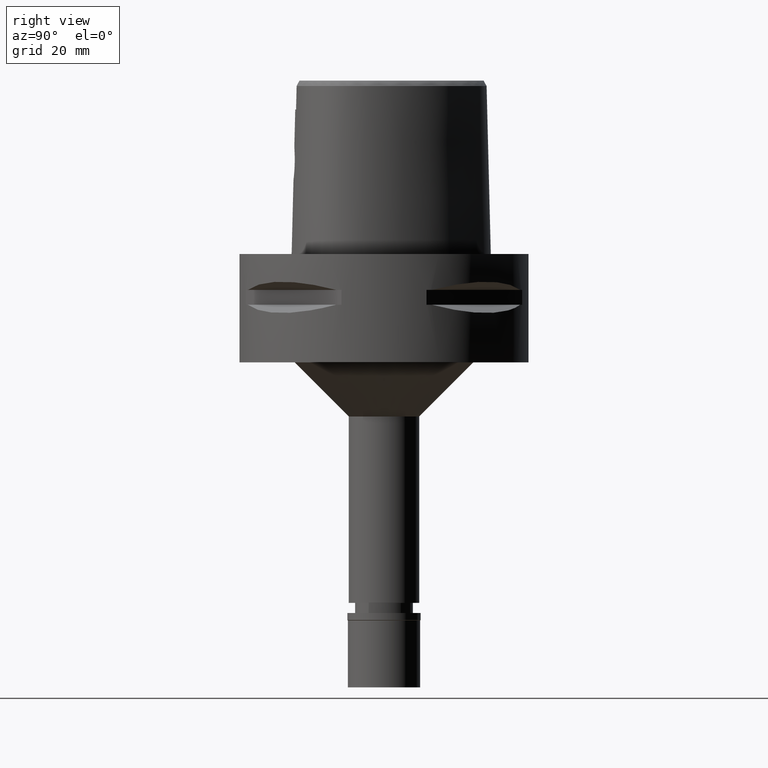
[diagram: clean part render]
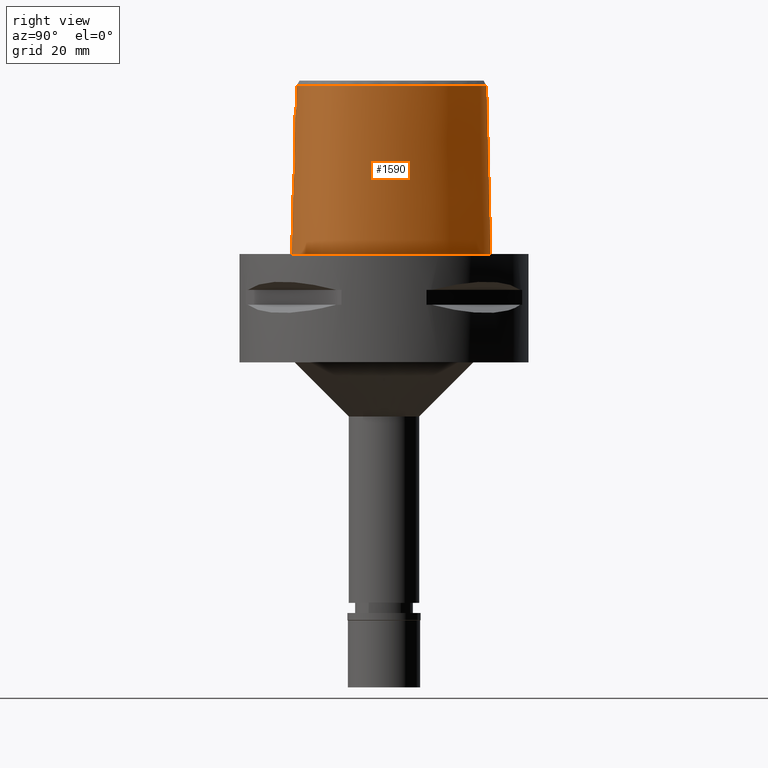
[diagram: same view with one face highlighted and labeled with its STEP entity id]
A machine part, right view. The second image highlights one B-rep face of the part: STEP entity #1590.
In plain terms, the highlighted face is a freeform B-spline surface patch.
Its self-contained STEP definition (entity closure, byte-faithful):
#25 = CARTESIAN_POINT ( 'NONE',  ( 4.255303340876159801, -24.72011691775877296, 26.61166571686794313 ) ) ;
#71 = EDGE_CURVE ( 'NONE', #4974, #72, #561, .T. ) ;
#72 = VERTEX_POINT ( 'NONE', #533 ) ;
#74 = CARTESIAN_POINT ( 'NONE',  ( 26.66520819006000309, -5.367805594961000182, 47.45115810789000221 ) ) ;
#97 = CARTESIAN_POINT ( 'NONE',  ( 25.95531648454999996, -11.08496000101999890, 47.45115810789000221 ) ) ;
#100 = CARTESIAN_POINT ( 'NONE',  ( 2.284825071854698741, -24.79755434855704266, 28.93755567618812208 ) ) ;
#117 = CARTESIAN_POINT ( 'NONE',  ( 24.79336082232000038, -16.13554023026999928, -0.9304148648605999883 ) ) ;
#128 = CARTESIAN_POINT ( 'NONE',  ( 24.69258566271064126, -14.08975149522348325, 46.52069831738066341 ) ) ;
#143 = CARTESIAN_POINT ( 'NONE',  ( 24.10679938013999646, 6.379205354108999693, 47.45115810789000221 ) ) ;
#151 = B_SPLINE_CURVE_WITH_KNOTS ( 'NONE', 3,
 ( #5047, #4221, #326, #1563, #4294, #1508, #3495, #3091, #4656, #3418, #2660, #3115, #1108, #2730, #4708, #275, #5022, #713, #5074, #4681, #1135, #2343, #3910, #639, #3521, #1954, #2242, #3808, #4996, #1452, #3039, #1870, #1062, #1485, #3067, #4630, #3172, #766, #1621, #2005, #1670, #4817, #3991, #3576, #4352, #3939, #2756, #407, #4838, #4321, #3247, #2371, #3198, #25, #480, #1219, #841, #2078, #3651, #4737, #2858, #2423, #1269, #3269, #4378, #380, #868, #2473, #4764, #2056, #430, #4795, #1245, #1981, #2029, #1593, #4423, #4038, #100, #3966, #3552, #457, #817, #2447, #3604, #1192, #4398 ),
 .UNSPECIFIED., .F., .F.,
 ( 4, 2, 2, 1, 1, 1, 1, 2, 2, 2, 2, 2, 1, 1, 2, 2, 2, 2, 2, 2, 1, 2, 2, 2, 2, 1, 2, 2, 2, 2, 1, 1, 1, 2, 2, 2, 2, 2, 1, 1, 2, 2, 2, 1, 2, 2, 2, 1, 2, 2, 4 ),
 ( 0.0000000000000000000, 0.06250000000003209932, 0.09375000000004818368, 0.1093750000000561773, 0.1171875000000603267, 0.1210937500000623945, 0.1230468750000632966, 0.1240234375000636158, 0.1250000000000639211, 0.1875000000000706935, 0.2187500000000739131, 0.2343750000000753286, 0.2421875000000759948, 0.2460937500000763556, 0.2480468750000762723, 0.2500000000000761613, 0.2812500000000740519, 0.2968750000000729972, 0.3125000000000718869, 0.3437500000000697220, 0.3593750000000690004, 0.3671875000000682787, 0.3750000000000675571, 0.4375000000000607847, 0.4687500000000576761, 0.4843750000000565104, 0.4921875000000559552, 0.5000000000000552891, 0.5625000000000507372, 0.5937500000000485167, 0.6093750000000474065, 0.6171875000000468514, 0.6210937500000466294, 0.6230468750000465183, 0.6250000000000464073, 0.6875000000000431877, 0.7187500000000413003, 0.7343750000000403011, 0.7421875000000396350, 0.7460937500000393019, 0.7480468750000389688, 0.7500000000000386358, 0.7812500000000346390, 0.7968750000000325295, 0.8046875000000315303, 0.8125000000000306422, 0.8437500000000253131, 0.8593750000000225375, 0.8671875000000213163, 0.8750000000000199840, 1.000000000000000000 ),
 .UNSPECIFIED. ) ;
#165 = CARTESIAN_POINT ( 'NONE',  ( 26.37046815431000013, -13.40391020210000228, -0.9304148648605999883 ) ) ;
#168 = CARTESIAN_POINT ( 'NONE',  ( 1.049694954398138425, 29.57499994949292699, 2.020350682975860512E-06 ) ) ;
#240 = LINE ( 'NONE', #3004, #3667 ) ;
#275 = CARTESIAN_POINT ( 'NONE',  ( 2.568983978598533113, -24.97528315391451414, 21.24168007029539496 ) ) ;
#287 = CARTESIAN_POINT ( 'NONE',  ( 8.894849643728001354, 26.12169650510000096, 31.32396711697000313 ) ) ;
#326 = CARTESIAN_POINT ( 'NONE',  ( 0.5741109003799529376, -25.06046598330699737, 20.47661985235028581 ) ) ;
#380 = CARTESIAN_POINT ( 'NONE',  ( 3.329382130122031658, -24.75674668230306352, 28.10179055163081685 ) ) ;
#406 = ORIENTED_EDGE ( 'NONE', *, *, #2883, .T. ) ;
#407 = CARTESIAN_POINT ( 'NONE',  ( 4.550159243768822748, -24.72595648767390131, 25.28426205013431627 ) ) ;
#430 = CARTESIAN_POINT ( 'NONE',  ( 3.115833847004891854, -24.76582665838796871, 28.31908668410576269 ) ) ;
#450 = CARTESIAN_POINT ( 'NONE',  ( 22.57751523357000067, -16.93548344190999799, 47.45115810789000221 ) ) ;
#457 = CARTESIAN_POINT ( 'NONE',  ( 1.883305297023832203, -24.80958828430668461, 29.14211520706646041 ) ) ;
#476 = CARTESIAN_POINT ( 'NONE',  ( 11.64093419862999923, -23.76831828479999942, 15.19677612605999961 ) ) ;
#480 = CARTESIAN_POINT ( 'NONE',  ( 4.230858595537661415, -24.72073100376797328, 26.67421065539050318 ) ) ;
#497 = CARTESIAN_POINT ( 'NONE',  ( 15.30623779952999897, -22.98697011092999887, -0.9304148648605999883 ) ) ;
#525 = CARTESIAN_POINT ( 'NONE',  ( 26.00056126445000260, -13.24168024067999916, 15.19677612605999961 ) ) ;
#533 = CARTESIAN_POINT ( 'NONE',  ( -1.503646693047000230E-11, -25.57499999999999929, 7.701247047482998387E-14 ) ) ;
#537 = CARTESIAN_POINT ( 'NONE',  ( 3.083107003972266558, -24.50056602138460349, 40.00000010061342692 ) ) ;
#552 = CARTESIAN_POINT ( 'NONE',  ( 22.86810858523000078, -17.21714013668999854, 31.32396711697000313 ) ) ;
#557 = CARTESIAN_POINT ( 'NONE',  ( 22.33885461375145454, 12.89734372464069168, 2.020350682975860512E-06 ) ) ;
#558 = CARTESIAN_POINT ( 'NONE',  ( 4.472216720976999405, -24.20009030094000124, 46.52069014668999358 ) ) ;
#561 = LINE ( 'NONE', #897, #1191 ) ;
#564 = CARTESIAN_POINT ( 'NONE',  ( 26.04423705949246681, -10.88022456237710678, 46.52069972612039095 ) ) ;
#574 = CARTESIAN_POINT ( 'NONE',  ( 4.516620373932790145, -24.24973711153631939, 44.34712678184333612 ) ) ;
#606 = CARTESIAN_POINT ( 'NONE',  ( -0.8826520932963000110, 29.16640526415000068, 15.19677612605999961 ) ) ;
#608 = CARTESIAN_POINT ( 'NONE',  ( -4.859330059104824178E-09, -24.74922215084501431, 33.03333351495535197 ) ) ;
#632 = CARTESIAN_POINT ( 'NONE',  ( 5.957940551854999711, 27.62557816347999662, 31.32396711697000313 ) ) ;
#639 = CARTESIAN_POINT ( 'NONE',  ( 3.196341748950096928, -24.92467674393279964, 21.76178677583786936 ) ) ;
#655 = CARTESIAN_POINT ( 'NONE',  ( -0.5711750854157000568, 28.78275017890000242, 31.32396711697000313 ) ) ;
#679 = CARTESIAN_POINT ( 'NONE',  ( 6.271543174286001054, 28.37237221420999944, -0.9304148648605999883 ) ) ;
#689 = CARTESIAN_POINT ( 'NONE',  ( 3.645689543555000014E-11, 29.57499999998999840, 7.064719180030999212E-14 ) ) ;
#712 = VERTEX_POINT ( 'NONE', #689 ) ;
#713 = CARTESIAN_POINT ( 'NONE',  ( 2.890648186358896865, -24.95092863274546247, 21.48525694161316224 ) ) ;
#726 = CARTESIAN_POINT ( 'NONE',  ( 1.351075727145000046E-14, -24.83629963747999980, 29.55000000000000071 ) ) ;
#733 = EDGE_CURVE ( 'NONE', #4974, #2563, #151, .T. ) ;
#748 = EDGE_CURVE ( 'NONE', #72, #712, #3134, .T. ) ;
#766 = CARTESIAN_POINT ( 'NONE',  ( 4.186622009783886433, -24.81141158316093254, 23.21777758281611526 ) ) ;
#787 = CARTESIAN_POINT ( 'NONE',  ( -0.5642169905602000268, -25.19264548519999991, 15.19677612605999961 ) ) ;
#796 = CARTESIAN_POINT ( 'NONE',  ( -1.503646693047000230E-11, -25.57499999999999929, 7.701247047482998387E-14 ) ) ;
#815 = CARTESIAN_POINT ( 'NONE',  ( 4.472216720976999405, -24.20009030094000124, 46.52069014668999358 ) ) ;
#817 = CARTESIAN_POINT ( 'NONE',  ( 1.813541865611360882, -24.81148519056482726, 29.17313109452413045 ) ) ;
#836 = CARTESIAN_POINT ( 'NONE',  ( 14.86558269258999943, -21.85772746754999929, 47.45115810789000221 ) ) ;
#841 = CARTESIAN_POINT ( 'NONE',  ( 4.212885333431600543, -24.72121330192673838, 26.71877560768000492 ) ) ;
#862 = CARTESIAN_POINT ( 'NONE',  ( 15.01246772824000075, -22.23414168200999796, 31.32396711697000313 ) ) ;
#868 = CARTESIAN_POINT ( 'NONE',  ( 3.275992991611895278, -24.75902016830565344, 28.15772619068094684 ) ) ;
#880 = CARTESIAN_POINT ( 'NONE',  ( 26.30769162470403089, -1.593520748817947696, 46.52070310709583367 ) ) ;
#890 = CARTESIAN_POINT ( 'NONE',  ( 27.47379235717000157, -5.347524340868999637, 15.19677612605999961 ) ) ;
#894 = CARTESIAN_POINT ( 'NONE',  ( 26.34912732586222361, -13.39455076092531094, 2.020350682975860512E-06 ) ) ;
#897 = CARTESIAN_POINT ( 'NONE',  ( -1.869387194591000113E-12, -25.06378435148999984, 20.44999999999999929 ) ) ;
#916 = CARTESIAN_POINT ( 'NONE',  ( 26.76156673356999960, -1.884109369419999958, 31.32396711697000313 ) ) ;
#940 = CARTESIAN_POINT ( 'NONE',  ( 26.90338645297000042, -8.653104814034998427, 31.32396711697000313 ) ) ;
#952 = CARTESIAN_POINT ( 'NONE',  ( 10.99875819582718783, 24.38035098655623045, 46.52071268652620972 ) ) ;
#965 = CARTESIAN_POINT ( 'NONE',  ( -1.451045074373000022E-08, -24.57504746727000011, 40.00000005214000254 ) ) ;
#968 = CARTESIAN_POINT ( 'NONE',  ( 3.149084863600866147, 29.34015620035621552, 2.020350682975860512E-06 ) ) ;
#978 = ORIENTED_EDGE ( 'NONE', *, *, #748, .T. ) ;
#991 = CARTESIAN_POINT ( 'NONE',  ( 3.067023364384000139, 28.96669959303000041, 15.19677612605999961 ) ) ;
#1050 = CARTESIAN_POINT ( 'NONE',  ( 12.96695399538999993, 23.75598697896000289, 15.19677612605999961 ) ) ;
#1062 = CARTESIAN_POINT ( 'NONE',  ( 3.937353243848182416, -24.84519667286565081, 22.71482954510167218 ) ) ;
#1078 = VERTEX_POINT ( 'NONE', #558 ) ;
#1108 = CARTESIAN_POINT ( 'NONE',  ( 1.732112786592430842, -25.02412118468006241, 20.79259001707740140 ) ) ;
#1135 = CARTESIAN_POINT ( 'NONE',  ( 3.100243586364280102, -24.93331626314397198, 21.66917441973963321 ) ) ;
#1156 = CARTESIAN_POINT ( 'NONE',  ( 2.373865152720000093, -25.21827227128000004, 15.19677612605999961 ) ) ;
#1191 = VECTOR ( 'NONE', #4529, 1000.000000000000000 ) ;
#1192 = CARTESIAN_POINT ( 'NONE',  ( 0.5545157691441454650, -24.83629963748000691, 29.55000000000000782 ) ) ;
#1219 = CARTESIAN_POINT ( 'NONE',  ( 4.220110851308596978, -24.72101730040711942, 26.70095761995009553 ) ) ;
#1245 = CARTESIAN_POINT ( 'NONE',  ( 2.832428424601074912, -24.77719445135568321, 28.56165880794259593 ) ) ;
#1265 = CARTESIAN_POINT ( 'NONE',  ( 27.16099283278999721, -1.823107515857000038, 15.19677612605999961 ) ) ;
#1269 = CARTESIAN_POINT ( 'NONE',  ( 3.512978482362885124, -24.74890643940148394, 27.89278862329918596 ) ) ;
#1285 = CARTESIAN_POINT ( 'NONE',  ( 25.26074748473000042, -12.91722031783000091, 47.45115810789000221 ) ) ;
#1299 = CARTESIAN_POINT ( 'NONE',  ( -1.451045074373000022E-08, -24.57504746727000011, 40.00000005214000254 ) ) ;
#1311 = CARTESIAN_POINT ( 'NONE',  ( 27.06950027361999744, -5.357664967915000354, 31.32396711697000313 ) ) ;
#1314 = CARTESIAN_POINT ( 'NONE',  ( 17.75297947250131614, 19.52218746774529734, 2.020350682975860512E-06 ) ) ;
#1322 = CARTESIAN_POINT ( 'NONE',  ( 24.48700992950455202, 6.834036305495234664, 46.52070592457526033 ) ) ;
#1335 = CARTESIAN_POINT ( 'NONE',  ( 6.695047937836999807, -25.26858195585000288, -0.9304148648605999883 ) ) ;
#1363 = CARTESIAN_POINT ( 'NONE',  ( 27.87808444071999858, -5.337383713823999898, -0.9304148648605999883 ) ) ;
#1400 = CARTESIAN_POINT ( 'NONE',  ( 4.472216720976999405, -24.20009030094000124, 46.52069014668999358 ) ) ;
#1418 = CARTESIAN_POINT ( 'NONE',  ( 0.6828676300167999536, 28.41974757618999803, 47.45115810789000221 ) ) ;
#1441 = CARTESIAN_POINT ( 'NONE',  ( 21.30723540749999856, 12.30173079563000016, 47.45115810789000221 ) ) ;
#1452 = CARTESIAN_POINT ( 'NONE',  ( 3.695416430653968298, -24.87420445000563873, 22.34444809527642306 ) ) ;
#1474 = CARTESIAN_POINT ( 'NONE',  ( 12.43420484750999933, 23.14497592412000060, 47.45115810789000221 ) ) ;
#1484 = ORIENTED_EDGE ( 'NONE', *, *, #1987, .F. ) ;
#1485 = CARTESIAN_POINT ( 'NONE',  ( 4.043275511959487645, -24.83139551622599939, 22.91194186429490642 ) ) ;
#1508 = CARTESIAN_POINT ( 'NONE',  ( 1.374979210369259075, -25.03889659011747426, 20.66206490747639535 ) ) ;
#1527 = CARTESIAN_POINT ( 'NONE',  ( -0.8391799784567999243, -24.78463116380999764, 31.32396711697000313 ) ) ;
#1555 = CARTESIAN_POINT ( 'NONE',  ( -0.5548491662155999871, -24.38637808051000277, 47.45115810789000221 ) ) ;
#1563 = CARTESIAN_POINT ( 'NONE',  ( 1.011135947206215357, -25.05051087875797577, 20.56129276502841918 ) ) ;
#1590 = ADVANCED_FACE ( 'NONE', ( #1945 ), #4994, .T. ) ;
#1593 = CARTESIAN_POINT ( 'NONE',  ( 2.592678685477895595, -24.78641481269933777, 28.73923899945411975 ) ) ;
#1612 = CARTESIAN_POINT ( 'NONE',  ( -0.8532294279300000062, -25.59082454062000167, -0.9304148648605999883 ) ) ;
#1621 = CARTESIAN_POINT ( 'NONE',  ( 4.325577296999666643, -24.79069917426005532, 23.55238152010286257 ) ) ;
#1646 = VERTEX_POINT ( 'NONE', #965 ) ;
#1648 = CARTESIAN_POINT ( 'NONE',  ( 15.29776364445727665, -22.96525385909394146, 2.020350682975860512E-06 ) ) ;
#1664 = CARTESIAN_POINT ( 'NONE',  ( 22.00846679324000021, 12.70659188880000023, 15.19677612605999961 ) ) ;
#1670 = CARTESIAN_POINT ( 'NONE',  ( 4.496850936021979273, -24.75618253903773791, 24.29074513878774511 ) ) ;
#1676 = CARTESIAN_POINT ( 'NONE',  ( 26.66096789088750540, -6.450661550929090104, 46.52070141660812652 ) ) ;
#1685 = CARTESIAN_POINT ( 'NONE',  ( 23.44929528854000367, -17.78045352626000053, -0.9304148648605999883 ) ) ;
#1698 = CARTESIAN_POINT ( 'NONE',  ( 11.70978320535028416, -23.05272019185246890, 46.52069240067365286 ) ) ;
#1709 = CARTESIAN_POINT ( 'NONE',  ( 6.528779289221000148, -24.06669525166000057, 47.45115810789000221 ) ) ;
#1711 = ORIENTED_EDGE ( 'NONE', *, *, #71, .T. ) ;
#1738 = CARTESIAN_POINT ( 'NONE',  ( 26.34453501942000031, -11.19579288669999961, 31.32396711697000313 ) ) ;
#1741 = CARTESIAN_POINT ( 'NONE',  ( 24.77458489416542520, -16.12173825127648286, 2.020350682975860512E-06 ) ) ;
#1761 = CARTESIAN_POINT ( 'NONE',  ( 26.79474626713000163, 1.906447389826000149, -0.9304148648605999883 ) ) ;
#1765 = CARTESIAN_POINT ( 'NONE',  ( 26.77222809381433777, 1.900468737017501741, 2.020350682975860512E-06 ) ) ;
#1772 = CARTESIAN_POINT ( 'NONE',  ( 23.53784508589368940, -15.81022840325322143, 46.52069747213678141 ) ) ;
#1802 = VERTEX_POINT ( 'NONE', #4725 ) ;
#1870 = CARTESIAN_POINT ( 'NONE',  ( 3.861082105047251023, -24.85463631592573464, 22.58840412900304173 ) ) ;
#1881 = CARTESIAN_POINT ( 'NONE',  ( -1.869387194591000113E-12, -25.06378435148999984, 20.44999999999999929 ) ) ;
#1945 = FACE_OUTER_BOUND ( 'NONE', #4707, .T. ) ;
#1954 = CARTESIAN_POINT ( 'NONE',  ( 3.317903692992100861, -24.91347842919924815, 21.88291014845671967 ) ) ;
#1981 = CARTESIAN_POINT ( 'NONE',  ( 2.744259390201259752, -24.78063453097679059, 28.63060330404773524 ) ) ;
#1987 = EDGE_CURVE ( 'NONE', #3246, #712, #240, .T. ) ;
#2005 = CARTESIAN_POINT ( 'NONE',  ( 4.412773899541610589, -24.77516587915418711, 23.85162301166201715 ) ) ;
#2029 = CARTESIAN_POINT ( 'NONE',  ( 2.653628212344012471, -24.78409939537355555, 28.69623435023023106 ) ) ;
#2049 = CARTESIAN_POINT ( 'NONE',  ( 27.12297208917999924, -11.41745865807000015, -0.9304148648605999883 ) ) ;
#2056 = CARTESIAN_POINT ( 'NONE',  ( 3.227783996387031173, -24.76107025147647178, 28.20686722737175955 ) ) ;
#2073 = CARTESIAN_POINT ( 'NONE',  ( 24.46791210766999924, -15.89630644720000241, 15.19677612605999961 ) ) ;
#2078 = CARTESIAN_POINT ( 'NONE',  ( 4.208386412724069103, -24.72133790640166850, 26.72975093107614342 ) ) ;
#2086 = CARTESIAN_POINT ( 'NONE',  ( 17.84219066874068460, -20.48406917474394007, 46.52069465465723397 ) ) ;
#2096 = CARTESIAN_POINT ( 'NONE',  ( 23.81701467837000052, -15.41783888106999889, 47.45115810789000221 ) ) ;
#2107 = CARTESIAN_POINT ( 'NONE',  ( -1.276312217242000094E-11, 28.41206021534999593, 46.52071719450999154 ) ) ;
#2121 = CARTESIAN_POINT ( 'NONE',  ( 25.65830881006000297, -14.81383149846000080, -0.9304148648605999883 ) ) ;
#2153 = CARTESIAN_POINT ( 'NONE',  ( 6.639625054965000217, -24.86795305445999915, 15.19677612605999961 ) ) ;
#2166 = CARTESIAN_POINT ( 'NONE',  ( 24.33934953590062378, -14.68006085516705461, 46.52069803563267669 ) ) ;
#2205 = CARTESIAN_POINT ( 'NONE',  ( -0.5537150777366000032, 28.37988123787999939, 47.45115810789000221 ) ) ;
#2242 = CARTESIAN_POINT ( 'NONE',  ( 3.418326490945261309, -24.90370471633881877, 21.99337763265282319 ) ) ;
#2257 = CARTESIAN_POINT ( 'NONE',  ( 5.801139240639000327, 27.25218113812000098, 47.45115810789000221 ) ) ;
#2281 = CARTESIAN_POINT ( 'NONE',  ( -0.8299363096446000787, 28.36186474115000067, 47.45115810789000221 ) ) ;
#2343 = CARTESIAN_POINT ( 'NONE',  ( 3.156365463052517306, -24.92830912253881337, 21.72269515073472945 ) ) ;
#2371 = CARTESIAN_POINT ( 'NONE',  ( 4.337077477086219268, -24.71860659089786338, 26.37767366826317783 ) ) ;
#2399 = CARTESIAN_POINT ( 'NONE',  ( 6.691850456881861753, -25.24546869981140063, 2.020350682975860512E-06 ) ) ;
#2423 = CARTESIAN_POINT ( 'NONE',  ( 3.666127388018137534, -24.74236822830306082, 27.69981209000894751 ) ) ;
#2438 = ORIENTED_EDGE ( 'NONE', *, *, #3230, .T. ) ;
#2441 = CARTESIAN_POINT ( 'NONE',  ( 18.17462469869999708, -20.76404249308999894, 31.32396711697000313 ) ) ;
#2447 = CARTESIAN_POINT ( 'NONE',  ( 1.779627886569931761, -24.81238721778815659, 29.18772178098400616 ) ) ;
#2466 = CARTESIAN_POINT ( 'NONE',  ( 11.74634101737999892, -24.15815462031999772, -0.9304148648605999883 ) ) ;
#2473 = CARTESIAN_POINT ( 'NONE',  ( 3.252660951006618895, -24.76001264346000852, 28.18163816682487521 ) ) ;
#2479 = CARTESIAN_POINT ( 'NONE',  ( 23.08984995679885444, -16.35075897049731708, 46.52069719038884443 ) ) ;
#2488 = CARTESIAN_POINT ( 'NONE',  ( 27.56041893201000192, -1.762105662294999986, -0.9304148648605999883 ) ) ;
#2495 = CARTESIAN_POINT ( 'NONE',  ( 27.68378748809411505, -8.751933587375303247, 2.020350682975860512E-06 ) ) ;
#2514 = CARTESIAN_POINT ( 'NONE',  ( 2.334473148500999962, -24.41160947703999895, 47.45115810789000221 ) ) ;
#2527 = CARTESIAN_POINT ( 'NONE',  ( 4.602926386878999132, -24.35121850029999990, 40.00000005214999987 ) ) ;
#2540 = CARTESIAN_POINT ( 'NONE',  ( 26.50159579511000274, -8.602222670023000006, 47.45115810789000221 ) ) ;
#2554 = CARTESIAN_POINT ( 'NONE',  ( 13.63304938780016506, 22.11238814014133780, 46.52071155953436232 ) ) ;
#2563 = VERTEX_POINT ( 'NONE', #5052 ) ;
#2567 = CARTESIAN_POINT ( 'NONE',  ( 12.70057942144999963, 23.45048145154000352, 31.32396711697000313 ) ) ;
#2572 = CARTESIAN_POINT ( 'NONE',  ( 13.21796077208793285, 24.04386714922729595, 2.020350682975860512E-06 ) ) ;
#2593 = CARTESIAN_POINT ( 'NONE',  ( 0.7484115212988000643, 29.63215902889000475, -0.9304148648605999883 ) ) ;
#2622 = CARTESIAN_POINT ( 'NONE',  ( 9.316733122342000684, 26.81182151470000008, -0.9304148648605999883 ) ) ;
#2660 = CARTESIAN_POINT ( 'NONE',  ( 1.717599865389912717, -25.02478947459730563, 20.78664336873142915 ) ) ;
#2717 = ORIENTED_EDGE ( 'NONE', *, *, #733, .F. ) ;
#2730 = CARTESIAN_POINT ( 'NONE',  ( 1.952635857166621136, -25.01389984458335647, 20.88358337727350644 ) ) ;
#2756 = CARTESIAN_POINT ( 'NONE',  ( 4.549979298456324983, -24.73407938846012755, 24.96161245962010256 ) ) ;
#2810 = CARTESIAN_POINT ( 'NONE',  ( 11.74025984155485958, -24.13566401366437475, 2.020350682975860512E-06 ) ) ;
#2834 = CARTESIAN_POINT ( 'NONE',  ( 2.676740182761364828, -25.57499994949064970, 2.020350682975860512E-06 ) ) ;
#2851 = CARTESIAN_POINT ( 'NONE',  ( 26.40443211054000017, 1.802817632839000206, 15.19677612605999961 ) ) ;
#2858 = CARTESIAN_POINT ( 'NONE',  ( 3.756465253620393074, -24.73852494831059445, 27.57169756946007766 ) ) ;
#2865 = CARTESIAN_POINT ( 'NONE',  ( 5.530043876418369919, 27.35846726636281545, 46.52071494050980505 ) ) ;
#2876 = CARTESIAN_POINT ( 'NONE',  ( 2.354169150609999761, -24.81494087416000127, 31.32396711697000313 ) ) ;
#2883 = EDGE_CURVE ( 'NONE', #1646, #2563, #3656, .T. ) ;
#2901 = CARTESIAN_POINT ( 'NONE',  ( 26.01411795395000226, 1.699187875850999951, 31.32396711697000313 ) ) ;
#2918 = CARTESIAN_POINT ( 'NONE',  ( 4.560197243509509057, -24.30012338778693248, 42.17356341699667155 ) ) ;
#2923 = CARTESIAN_POINT ( 'NONE',  ( 21.19046229627999978, -19.29498354418999995, 15.19677612605999961 ) ) ;
#2948 = CARTESIAN_POINT ( 'NONE',  ( 3.154109048600000076, 29.36302094329000312, -0.9304148648605999883 ) ) ;
#3004 = CARTESIAN_POINT ( 'NONE',  ( -1.276312217242000094E-11, 28.41206021534999593, 46.52071719450999154 ) ) ;
#3030 = CARTESIAN_POINT ( 'NONE',  ( 0.7265635575380999800, 29.22802187798999896, 15.19677612605999961 ) ) ;
#3039 = CARTESIAN_POINT ( 'NONE',  ( 3.739368471919780834, -24.86915408846631337, 22.40675187304728411 ) ) ;
#3057 = CARTESIAN_POINT ( 'NONE',  ( -0.5886350930947999993, 29.18561911992000191, 15.19677612605999961 ) ) ;
#3067 = CARTESIAN_POINT ( 'NONE',  ( 4.094115463334950356, -24.82458451489378248, 23.01236396660540962 ) ) ;
#3091 = CARTESIAN_POINT ( 'NONE',  ( 1.609901483202052841, -25.02958960435421076, 20.74402583925068555 ) ) ;
#3110 = CARTESIAN_POINT ( 'NONE',  ( -0.8321552537202999700, -24.38153447541000318, 47.45115810789000221 ) ) ;
#3115 = CARTESIAN_POINT ( 'NONE',  ( 1.726554843534914285, -25.02437791916835153, 20.79030502623901810 ) ) ;
#3134 = B_SPLINE_CURVE_WITH_KNOTS ( 'NONE', 3,
 ( #796, #2834, #2399, #2810, #1648, #3226, #4014, #3630, #1741, #4525, #894, #4938, #2495, #4139, #3722, #1765, #3698, #557, #1314, #2572, #3775, #4912, #968, #168, #3312 ),
 .UNSPECIFIED., .F., .F.,
 ( 4, 1, 1, 1, 1, 1, 1, 1, 1, 1, 1, 1, 1, 1, 1, 1, 1, 1, 1, 1, 1, 1, 4 ),
 ( 0.0000000000000000000, 0.08333333333344000726, 0.1250000000001000033, 0.1666666666668000230, 0.2083333333333000081, 0.2500000000000000000, 0.2916666666666999919, 0.3125000000000000000, 0.3333333333333000081, 0.3541666666666000163, 0.3749999999998999689, 0.4166666666666000163, 0.4583333333332000326, 0.4999999999998999689, 0.5416666666664999852, 0.5833333333331000015, 0.6666666666664999852, 0.7499999999997000177, 0.8333333333329999704, 0.8749999999995999866, 0.9166666666663000340, 0.9583333333329000503, 1.000000000000000000 ),
 .UNSPECIFIED. ) ;
#3172 = CARTESIAN_POINT ( 'NONE',  ( 4.172398775490912648, -24.81348664747167021, 23.18477895933813926 ) ) ;
#3198 = CARTESIAN_POINT ( 'NONE',  ( 4.301663164393236372, -24.71910450366889123, 26.48607042045131621 ) ) ;
#3226 = CARTESIAN_POINT ( 'NONE',  ( 18.55019646660002053, -21.45394526799957902, 2.020350682975860512E-06 ) ) ;
#3230 = EDGE_CURVE ( 'NONE', #1802, #1646, #4715, .T. ) ;
#3241 = CARTESIAN_POINT ( 'NONE',  ( 27.70696776869000288, -8.754869102057998731, -0.9304148648605999883 ) ) ;
#3246 = VERTEX_POINT ( 'NONE', #3319 ) ;
#3247 = CARTESIAN_POINT ( 'NONE',  ( 4.402195190950401127, -24.71810392633526376, 26.16020714300089267 ) ) ;
#3253 = CARTESIAN_POINT ( 'NONE',  ( 26.56868348264447022, -7.988862950299366439, 46.52070085311222414 ) ) ;
#3265 = CARTESIAN_POINT ( 'NONE',  ( 21.43542293838000035, -19.61750339908000029, -0.9304148648605999883 ) ) ;
#3269 = CARTESIAN_POINT ( 'NONE',  ( 3.458990831523887977, -24.75121472495258246, 27.95724070545702844 ) ) ;
#3290 = CARTESIAN_POINT ( 'NONE',  ( 25.63065437459000151, -13.07945027924999870, 31.32396711697000313 ) ) ;
#3307 = CARTESIAN_POINT ( 'NONE',  ( 4.602926386878999132, -24.35121850029999990, 40.00000005214999987 ) ) ;
#3310 = CARTESIAN_POINT ( 'NONE',  ( 17.98126100373999847, -20.40884500190999873, 47.45115810789000221 ) ) ;
#3312 = CARTESIAN_POINT ( 'NONE',  ( 3.645689543555000014E-11, 29.57499999998999840, 7.064719180030999212E-14 ) ) ;
#3319 = CARTESIAN_POINT ( 'NONE',  ( -1.276312217242000094E-11, 28.41206021534999593, 46.52071719450999154 ) ) ;
#3332 = CARTESIAN_POINT ( 'NONE',  ( 25.62380379737000169, 1.595558118864000008, 47.45115810789000221 ) ) ;
#3347 = CARTESIAN_POINT ( 'NONE',  ( 21.61408639850543878, -17.89738970855057687, 46.52069634514500507 ) ) ;
#3359 = CARTESIAN_POINT ( 'NONE',  ( 8.683907904421998225, 25.77663400028999874, 47.45115810789000221 ) ) ;
#3369 = EDGE_CURVE ( 'NONE', #3246, #1078, #3549, .T. ) ;
#3381 = CARTESIAN_POINT ( 'NONE',  ( 13.23332856933999935, 24.06149250638999959, -0.9304148648605999883 ) ) ;
#3418 = CARTESIAN_POINT ( 'NONE',  ( 1.704163054240722897, -25.02540437729527767, 20.78117410888085814 ) ) ;
#3433 = DIRECTION ( 'NONE',  ( 1.057693186842026222E-12, 0.02499051293976060906, -0.9996876883622242138 ) ) ;
#3434 = CARTESIAN_POINT ( 'NONE',  ( 16.83227232424999897, 18.76477881602000153, 47.45115810789000221 ) ) ;
#3495 = CARTESIAN_POINT ( 'NONE',  ( 1.483723097889666942, -25.03485232889443424, 20.69751684277699511 ) ) ;
#3515 = CARTESIAN_POINT ( 'NONE',  ( -0.5689009027324999357, -25.59577918753999981, -0.9304148648605999883 ) ) ;
#3521 = CARTESIAN_POINT ( 'NONE',  ( 3.205701519811288591, -24.92381821717547652, 21.77105828208825855 ) ) ;
#3549 = B_SPLINE_CURVE_WITH_KNOTS ( 'NONE', 3,
 ( #2107, #4823, #3678, #2865, #4432, #952, #2554, #3757, #1322, #880, #4124, #1676, #3253, #564, #4871, #128, #2166, #1772, #2479, #3347, #4919, #2086, #3658, #1698, #4945, #1400 ),
 .UNSPECIFIED., .F., .F.,
 ( 4, 2, 2, 2, 2, 2, 2, 2, 2, 2, 2, 2, 4 ),
 ( 0.0000000000000000000, 0.06250000000000013878, 0.1250000000000002498, 0.2500000000000003886, 0.5000000000000007772, 0.5625000000000007772, 0.6250000000000007772, 0.6875000000000008882, 0.7187500000000008882, 0.7500000000000009992, 0.8125000000000007772, 0.8750000000000005551, 1.000000000000000000 ),
 .UNSPECIFIED. ) ;
#3552 = CARTESIAN_POINT ( 'NONE',  ( 1.986969619782771090, -24.80670454267238867, 29.09445024139261093 ) ) ;
#3568 = ORIENTED_EDGE ( 'NONE', *, *, #3369, .T. ) ;
#3576 = CARTESIAN_POINT ( 'NONE',  ( 4.544345534604061321, -24.73984392723428272, 24.75509518056024660 ) ) ;
#3604 = CARTESIAN_POINT ( 'NONE',  ( 1.153626000818439135, -24.82864766317860372, 29.44729853102414907 ) ) ;
#3626 = CARTESIAN_POINT ( 'NONE',  ( 22.35908248611000104, 12.90902243538000072, -0.9304148648605999883 ) ) ;
#3630 = CARTESIAN_POINT ( 'NONE',  ( 23.43253025107832599, -17.76420406627631010, 2.020350682975860512E-06 ) ) ;
#3647 = CARTESIAN_POINT ( 'NONE',  ( 15.15935276388999853, -22.61055589647000019, 15.19677612605999961 ) ) ;
#3651 = CARTESIAN_POINT ( 'NONE',  ( 4.115420520914923941, -24.72394829500669644, 26.95489229165172063 ) ) ;
#3656 = B_SPLINE_CURVE_WITH_KNOTS ( 'NONE', 3,
 ( #4166, #4910, #608, #726 ),
 .UNSPECIFIED., .F., .F.,
 ( 4, 4 ),
 ( 0.0000000000000000000, 1.000000000000000000 ),
 .UNSPECIFIED. ) ;
#3658 = CARTESIAN_POINT ( 'NONE',  ( 16.39076485917539827, -21.20751266143117064, 46.52069409116137422 ) ) ;
#3667 = VECTOR ( 'NONE', #3433, 1000.000000000000227 ) ;
#3669 = CARTESIAN_POINT ( 'NONE',  ( 18.56135208861000052, -21.47443747545000292, -0.9304148648605999883 ) ) ;
#3678 = CARTESIAN_POINT ( 'NONE',  ( 2.760678900604209396, 28.19254769429866059, 46.52071606750160981 ) ) ;
#3695 = CARTESIAN_POINT ( 'NONE',  ( 26.36214063434999844, -1.945111222982999877, 47.45115810789000221 ) ) ;
#3698 = CARTESIAN_POINT ( 'NONE',  ( 25.20914245292983580, 6.827421855915919657, 2.020350682975860512E-06 ) ) ;
#3718 = CARTESIAN_POINT ( 'NONE',  ( 25.30843701142000057, -14.61183292108999865, 15.19677612605999961 ) ) ;
#3722 = CARTESIAN_POINT ( 'NONE',  ( 27.53737506855495099, -1.765625007642571243, 2.020350682975860512E-06 ) ) ;
#3757 = CARTESIAN_POINT ( 'NONE',  ( 20.76159157987643056, 13.99289103072526075, 46.52070817855894802 ) ) ;
#3775 = CARTESIAN_POINT ( 'NONE',  ( 9.304563380186808175, 26.79191401927194249, 2.020350682975860512E-06 ) ) ;
#3797 = CARTESIAN_POINT ( 'NONE',  ( 6.114741863069999894, 27.99897518884000291, 15.19677612605999961 ) ) ;
#3808 = CARTESIAN_POINT ( 'NONE',  ( 3.560464869665294074, -24.88898092548869201, 22.16607190872600341 ) ) ;
#3822 = CARTESIAN_POINT ( 'NONE',  ( -0.8562942014704000293, 28.76413500264999712, 31.32396711697000313 ) ) ;
#3846 = CARTESIAN_POINT ( 'NONE',  ( 9.105791383034999242, 26.46675900989999874, 15.19677612605999961 ) ) ;
#3850 = B_SPLINE_CURVE_WITH_KNOTS ( 'NONE', 3,
 ( #3307, #2918, #574, #815 ),
 .UNSPECIFIED., .F., .F.,
 ( 4, 4 ),
 ( 0.0000000000000000000, 1.000000000000000000 ),
 .UNSPECIFIED. ) ;
#3894 = ORIENTED_EDGE ( 'NONE', *, *, #4802, .F. ) ;
#3910 = CARTESIAN_POINT ( 'NONE',  ( 3.180359783745202673, -24.92613363770007950, 21.74608895217523497 ) ) ;
#3939 = CARTESIAN_POINT ( 'NONE',  ( 4.549574022937064477, -24.73494683104344460, 24.92875559372934191 ) ) ;
#3966 = CARTESIAN_POINT ( 'NONE',  ( 2.087632527519903469, -24.80370565429675267, 29.04349576580156267 ) ) ;
#3991 = CARTESIAN_POINT ( 'NONE',  ( 4.537017841947839969, -24.74324082396891100, 24.64916680772597246 ) ) ;
#4010 = CARTESIAN_POINT ( 'NONE',  ( 20.70054101210000042, -18.64994383443000459, 47.45115810789000221 ) ) ;
#4014 = CARTESIAN_POINT ( 'NONE',  ( 21.42129056295577882, -19.59889644397081199, 2.020350682975860512E-06 ) ) ;
#4034 = CARTESIAN_POINT ( 'NONE',  ( 24.14246339302000166, -15.65707266414000109, 31.32396711697000313 ) ) ;
#4038 = CARTESIAN_POINT ( 'NONE',  ( 2.410767390570149882, -24.79324877274598649, 28.86155595108218463 ) ) ;
#4058 = CARTESIAN_POINT ( 'NONE',  ( 24.95856521279000262, -14.40983434372000005, 31.32396711697000313 ) ) ;
#4082 = CARTESIAN_POINT ( 'NONE',  ( 20.94550165419000010, -18.97246368931000049, 31.32396711697000313 ) ) ;
#4110 = CARTESIAN_POINT ( 'NONE',  ( 11.43012056112999986, -22.98864561373999749, 47.45115810789000221 ) ) ;
#4124 = CARTESIAN_POINT ( 'NONE',  ( 26.53043812451159411, -3.252830914800527662, 46.52070254359989576 ) ) ;
#4139 = CARTESIAN_POINT ( 'NONE',  ( 27.85475984679016292, -5.337968751270051548, 2.020350682975860512E-06 ) ) ;
#4165 = CARTESIAN_POINT ( 'NONE',  ( -0.6060951007739999730, 29.58848806093999784, -0.9304148648605999883 ) ) ;
#4166 = CARTESIAN_POINT ( 'NONE',  ( -1.451045074373000022E-08, -24.57504746727000011, 40.00000005214000254 ) ) ;
#4214 = CARTESIAN_POINT ( 'NONE',  ( 2.892851995951000177, 28.17405689251999945, 47.45115810789000221 ) ) ;
#4221 = CARTESIAN_POINT ( 'NONE',  ( 0.2837429639713737739, -25.06378435148999628, 20.45000000000000284 ) ) ;
#4234 = CARTESIAN_POINT ( 'NONE',  ( 17.45811250395000158, 19.27961870578000259, 15.19677612605999961 ) ) ;
#4294 = CARTESIAN_POINT ( 'NONE',  ( 1.157035249423742806, -25.04636291852922980, 20.59695966232735032 ) ) ;
#4316 = CARTESIAN_POINT ( 'NONE',  ( -0.8462047031934000207, -25.18772785222000010, 15.19677612605999961 ) ) ;
#4321 = CARTESIAN_POINT ( 'NONE',  ( 4.437987378315740195, -24.71842636459945552, 26.01433587875822084 ) ) ;
#4352 = CARTESIAN_POINT ( 'NONE',  ( 4.547962263617892020, -24.73685171198798116, 24.85950514487635132 ) ) ;
#4378 = CARTESIAN_POINT ( 'NONE',  ( 3.373359712603106075, -24.75487047605666646, 28.05365220515219349 ) ) ;
#4394 = CARTESIAN_POINT ( 'NONE',  ( 6.584202172093000627, -24.46732415306000163, 31.32396711697000313 ) ) ;
#4398 = CARTESIAN_POINT ( 'NONE',  ( 1.351075727145000046E-14, -24.83629963747999980, 29.55000000000000071 ) ) ;
#4420 = CARTESIAN_POINT ( 'NONE',  ( 18.36798839364999836, -21.11923998426999916, 15.19677612605999961 ) ) ;
#4423 = CARTESIAN_POINT ( 'NONE',  ( 2.560989721132870489, -24.78761092133475685, 28.76100236096378993 ) ) ;
#4432 = CARTESIAN_POINT ( 'NONE',  ( 6.913370730854032864, 26.74336904842570561, 46.52071437701388135 ) ) ;
#4443 = CARTESIAN_POINT ( 'NONE',  ( 11.53552737987999954, -23.37848194927000378, 31.32396711697000313 ) ) ;
#4453 = CARTESIAN_POINT ( 'NONE',  ( 1.541632511942993222, -24.57506718866543594, 40.00000010061342692 ) ) ;
#4469 = CARTESIAN_POINT ( 'NONE',  ( 24.85610450727000043, 6.683875407524999979, 15.19677612605999961 ) ) ;
#4492 = CARTESIAN_POINT ( 'NONE',  ( 27.30517711083000165, -8.703986958045998534, 15.19677612605999961 ) ) ;
#4521 = CARTESIAN_POINT ( 'NONE',  ( 2.979937680168000202, 28.57037824277999860, 31.32396711697000313 ) ) ;
#4525 = CARTESIAN_POINT ( 'NONE',  ( 25.63812385476946076, -14.80217770907538366, 2.020350682975860512E-06 ) ) ;
#4529 = DIRECTION ( 'NONE',  ( -6.436658925980793813E-13, -0.02499051295403921166, -0.9996876883618673881 ) ) ;
#4595 = CARTESIAN_POINT ( 'NONE',  ( -0.9090099851221999927, 29.56867552564999713, -0.9304148648605999883 ) ) ;
#4619 = CARTESIAN_POINT ( 'NONE',  ( 17.14519241410000205, 19.02219876090000028, 31.32396711697000313 ) ) ;
#4630 = CARTESIAN_POINT ( 'NONE',  ( 4.141553595727621051, -24.81790787904300544, 23.11546483665197371 ) ) ;
#4656 = CARTESIAN_POINT ( 'NONE',  ( 1.672780685871880113, -25.02682213713907800, 20.76857498625521004 ) ) ;
#4681 = CARTESIAN_POINT ( 'NONE',  ( 3.051956606900509961, -24.93748982820228477, 21.62510482542838730 ) ) ;
#4701 = CARTESIAN_POINT ( 'NONE',  ( 2.393561154828999893, -25.62160366840000236, -0.9304148648605999883 ) ) ;
#4707 = EDGE_LOOP ( 'NONE', ( #1484, #3568, #3894, #2438, #406, #2717, #1711, #978 ) ) ;
#4708 = CARTESIAN_POINT ( 'NONE',  ( 2.192364263587401219, -25.00047163864966748, 21.00192190659209501 ) ) ;
#4715 = B_SPLINE_CURVE_WITH_KNOTS ( 'NONE', 3,
 ( #2527, #537, #4453, #1299 ),
 .UNSPECIFIED., .F., .F.,
 ( 4, 4 ),
 ( 0.0000000000000000000, 1.000000000000000000 ),
 .UNSPECIFIED. ) ;
#4725 = CARTESIAN_POINT ( 'NONE',  ( 4.602926386878999132, -24.35121850029999990, 40.00000005214999987 ) ) ;
#4737 = CARTESIAN_POINT ( 'NONE',  ( 3.996558060065837470, -24.72854169055268869, 27.19514510550436270 ) ) ;
#4764 = CARTESIAN_POINT ( 'NONE',  ( 3.237005511786715584, -24.76067832112077127, 28.19756469887045469 ) ) ;
#4795 = CARTESIAN_POINT ( 'NONE',  ( 3.005270379488025334, -24.77034733848101666, 28.41951852238070231 ) ) ;
#4802 = EDGE_CURVE ( 'NONE', #1802, #1078, #3850, .T. ) ;
#4812 = CARTESIAN_POINT ( 'NONE',  ( 23.15870193687999645, -17.49879683147999998, 15.19677612605999961 ) ) ;
#4817 = CARTESIAN_POINT ( 'NONE',  ( 4.517116520646564659, -24.75057419275596615, 24.43553773667434825 ) ) ;
#4823 = CARTESIAN_POINT ( 'NONE',  ( 1.375467128703573572, 28.41206022877129200, 46.52071663099749799 ) ) ;
#4834 = CARTESIAN_POINT ( 'NONE',  ( 24.48145194370999889, 6.531540380816999836, 31.32396711697000313 ) ) ;
#4838 = CARTESIAN_POINT ( 'NONE',  ( 4.523121810470202675, -24.72136632330988348, 25.57645994462144756 ) ) ;
#4861 = CARTESIAN_POINT ( 'NONE',  ( 26.73375355429999800, -11.30662577238999944, 15.19677612605999961 ) ) ;
#4871 = CARTESIAN_POINT ( 'NONE',  ( 25.61240997289198518, -12.23358473966123228, 46.52069916262449567 ) ) ;
#4882 = CARTESIAN_POINT ( 'NONE',  ( 24.60869341415000022, -14.20783576636000056, 47.45115810789000221 ) ) ;
#4908 = CARTESIAN_POINT ( 'NONE',  ( 25.23075707083999930, 6.836210434233000122, -0.9304148648605999883 ) ) ;
#4910 = CARTESIAN_POINT ( 'NONE',  ( -4.850531491543267166E-09, -24.66214466420310103, 36.51666702991064284 ) ) ;
#4912 = CARTESIAN_POINT ( 'NONE',  ( 6.262496925149326543, 28.35083003135327928, 2.020350682975860512E-06 ) ) ;
#4919 = CARTESIAN_POINT ( 'NONE',  ( 20.45409312013732261, -18.82869992193876385, 46.52069578164910979 ) ) ;
#4938 = CARTESIAN_POINT ( 'NONE',  ( 27.10051712494639631, -11.41106443924220670, 2.020350682975860512E-06 ) ) ;
#4945 = CARTESIAN_POINT ( 'NONE',  ( 8.153873202538610698, -23.84765792154522757, 46.52069127368186230 ) ) ;
#4974 = VERTEX_POINT ( 'NONE', #1881 ) ;
#4987 = CARTESIAN_POINT ( 'NONE',  ( 0.7047155937773998957, 28.82388472709000027, 31.32396711697000313 ) ) ;
#4994 = B_SPLINE_SURFACE_WITH_KNOTS ( 'NONE', 3, 3, ( 
 ( #1612, #4316, #1527, #3110 ),
 ( #3515, #787, #5093, #1555 ),
 ( #4701, #1156, #2876, #2514 ),
 ( #1335, #2153, #4394, #1709 ),
 ( #2466, #476, #4443, #4110 ),
 ( #497, #3647, #862, #836 ),
 ( #3669, #4420, #2441, #3310 ),
 ( #3265, #2923, #4082, #4010 ),
 ( #1685, #4812, #552, #450 ),
 ( #117, #2073, #4034, #2096 ),
 ( #2121, #3718, #4058, #4882 ),
 ( #165, #525, #3290, #1285 ),
 ( #2049, #4861, #1738, #97 ),
 ( #3241, #4492, #940, #2540 ),
 ( #1363, #890, #1311, #74 ),
 ( #2488, #1265, #916, #3695 ),
 ( #1761, #2851, #2901, #3332 ),
 ( #4908, #4469, #4834, #143 ),
 ( #3626, #1664, #5010, #1441 ),
 ( #5036, #4234, #4619, #3434 ),
 ( #3381, #1050, #2567, #1474 ),
 ( #2622, #3846, #287, #3359 ),
 ( #679, #3797, #632, #2257 ),
 ( #2948, #991, #4521, #4214 ),
 ( #2593, #3030, #4987, #1418 ),
 ( #4165, #3057, #655, #2205 ),
 ( #4595, #606, #3822, #2281 ) ),
 .UNSPECIFIED., .F., .F., .F.,
 ( 4, 1, 1, 1, 1, 1, 1, 1, 1, 1, 1, 1, 1, 1, 1, 1, 1, 1, 1, 1, 1, 1, 1, 1, 4 ),
 ( 4, 4 ),
 ( -0.008851417483066000708, 0.0000000000000000000, 0.08333333333344000726, 0.1250000000001000033, 0.1666666666668000230, 0.2083333333333000081, 0.2500000000000000000, 0.2916666666666999919, 0.3125000000000000000, 0.3333333333333000081, 0.3541666666666000163, 0.3749999999998999689, 0.4166666666666000163, 0.4583333333332000326, 0.4999999999998999689, 0.5416666666664999852, 0.5833333333331000015, 0.6666666666664999852, 0.7499999999997000177, 0.8333333333329999704, 0.8749999999995999866, 0.9166666666663000340, 0.9583333333329000503, 1.000000000000000000, 1.012009199036000062 ),
 ( -2.798883382005000107E-09, 1.000000142743000087 ),
 .UNSPECIFIED. ) ;
#4996 = CARTESIAN_POINT ( 'NONE',  ( 3.606429171763832375, -24.88406245827872709, 22.22480142265834502 ) ) ;
#5010 = CARTESIAN_POINT ( 'NONE',  ( 21.65785110036999939, 12.50416134221999975, 31.32396711697000313 ) ) ;
#5022 = CARTESIAN_POINT ( 'NONE',  ( 2.697261088283794628, -24.96604596303036061, 21.33198344650084977 ) ) ;
#5036 = CARTESIAN_POINT ( 'NONE',  ( 17.77103259381000200, 19.53703865066000134, -0.9304148648605999883 ) ) ;
#5047 = CARTESIAN_POINT ( 'NONE',  ( -1.869387194591000113E-12, -25.06378435148999984, 20.44999999999999929 ) ) ;
#5052 = CARTESIAN_POINT ( 'NONE',  ( 1.351075727145000046E-14, -24.83629963747999980, 29.55000000000000071 ) ) ;
#5074 = CARTESIAN_POINT ( 'NONE',  ( 2.955264688607940560, -24.94567926532405977, 21.53931554468357490 ) ) ;
#5093 = CARTESIAN_POINT ( 'NONE',  ( -0.5595330783879000069, -24.78951178286000001, 31.32396711697000313 ) ) ;